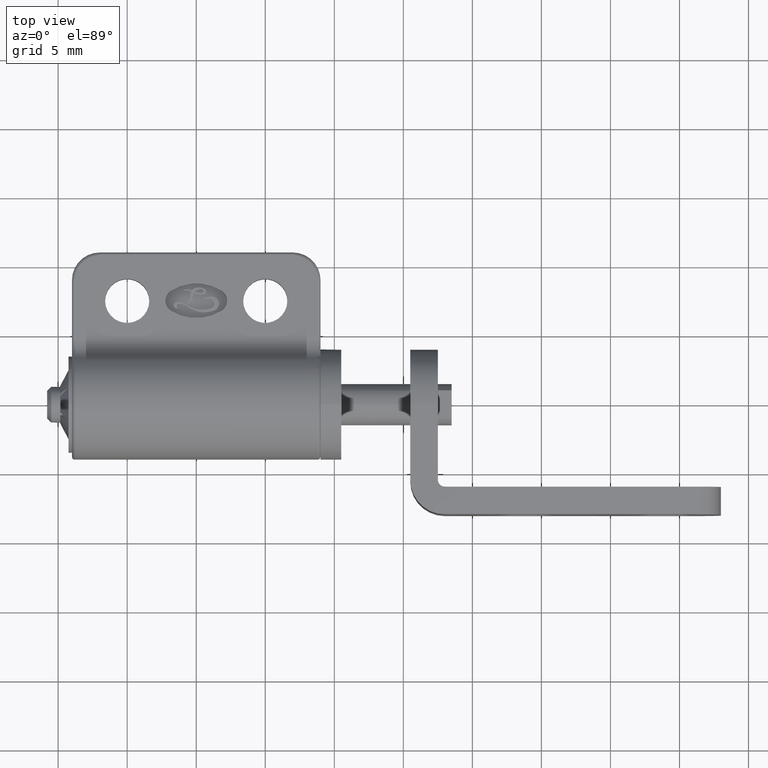
[diagram: clean part render]
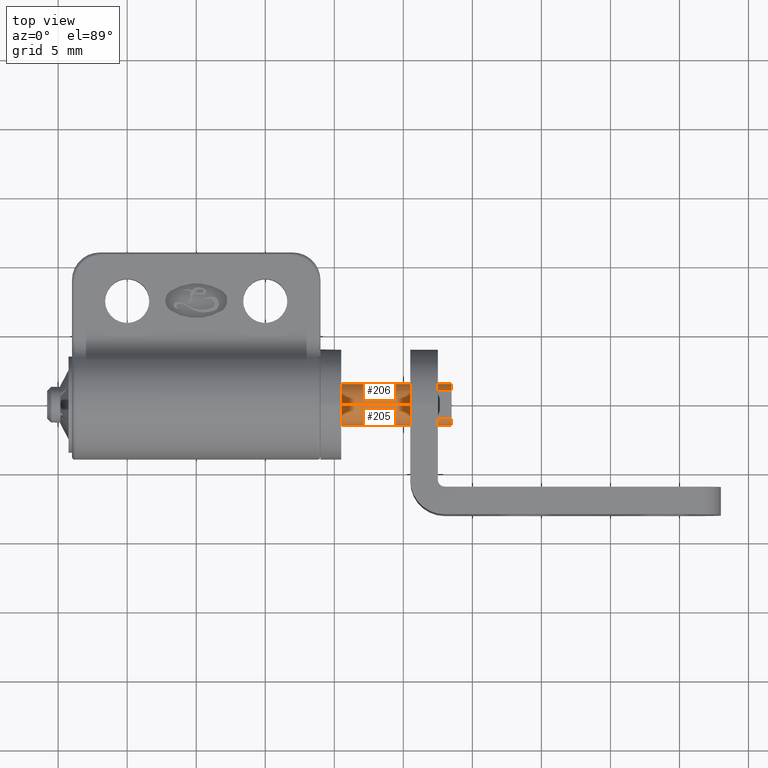
[diagram: same view with one multi-face feature highlighted, each face labeled with its STEP entity id]
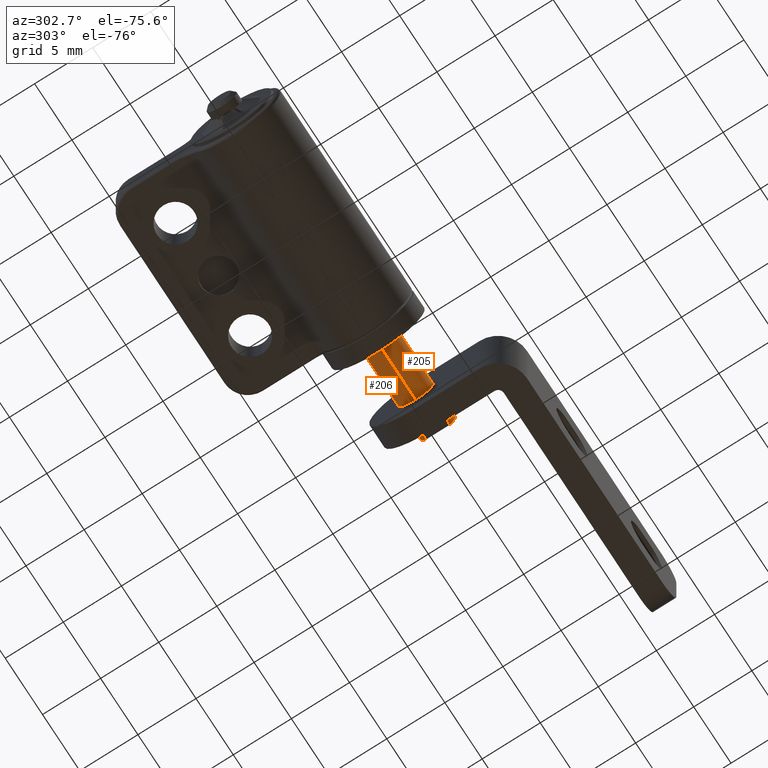
[diagram: same view with one multi-face feature highlighted, each face labeled with its STEP entity id]
A machine part, top view. The highlighted faces form ONE feature: a constant-radius fillet chain: 2 tangent blend faces with common blend radius 1.5 mm. The faces share edges in the B-rep.
A second angle (auxiliary view) of the same feature is appended — it is thin or edge-on in the first view.
Their STEP definitions:
[1] entity #205 (Cylinder):
#205=ADVANCED_FACE('',(#1887),#1886,.T.);
#1886=CYLINDRICAL_SURFACE('',#3113,1.50000000000E+00);
#1887=FACE_OUTER_BOUND('',#3114,.T.);
#3110=CARTESIAN_POINT('',(1.45000000000E+01,0.00000000000E+00,0.00000000000E+00));
#3111=DIRECTION('',(1.00000000000E+00,-0.00000000000E+00,-0.00000000000E+00));
#3112=DIRECTION('',(-0.00000000000E+00,-0.00000000000E+00,1.00000000000E+00));
#3113=AXIS2_PLACEMENT_3D('',#3110,#3111,#3112);
#3114=EDGE_LOOP('',(#4062,#4063,#4064,#4065,#4066,#4067,#4068,#4069,#4070,#4071));
#4062=ORIENTED_EDGE('',*,*,#4532,.T.);
#4063=ORIENTED_EDGE('',*,*,#4283,.T.);
#4064=ORIENTED_EDGE('',*,*,#4279,.T.);
#4065=ORIENTED_EDGE('',*,*,#4291,.T.);
#4066=ORIENTED_EDGE('',*,*,#4287,.T.);
#4067=ORIENTED_EDGE('',*,*,#4288,.T.);
#4068=ORIENTED_EDGE('',*,*,#4531,.T.);
#4069=ORIENTED_EDGE('',*,*,#4571,.F.);
#4070=ORIENTED_EDGE('',*,*,#4514,.F.);
#4071=ORIENTED_EDGE('',*,*,#4572,.T.);
#4279=EDGE_CURVE('',#5805,#5797,#5806,.T.);
#4283=EDGE_CURVE('',#5007,#5805,#5831,.T.);
#4287=EDGE_CURVE('',#5838,#5852,#5859,.T.);
#4288=EDGE_CURVE('',#5852,#4626,#5865,.T.);
#4291=EDGE_CURVE('',#5797,#5838,#5883,.T.);
#4514=EDGE_CURVE('',#7359,#7360,#7361,.T.);
#4531=EDGE_CURVE('',#4626,#7465,#7472,.T.);
#4532=EDGE_CURVE('',#7478,#5007,#7479,.T.);
#4571=EDGE_CURVE('',#7360,#7465,#7722,.T.);
#4572=EDGE_CURVE('',#7359,#7478,#7728,.T.);
#4626=VERTEX_POINT('',#7788);
#5007=VERTEX_POINT('',#8016);
#5797=VERTEX_POINT('',#8498);
#5805=VERTEX_POINT('',#8503);
#5806=LINE('',#8504,#8505);
#5831=CIRCLE('',#8521,1.50000000000E+00);
#5838=VERTEX_POINT('',#8523);
#5852=VERTEX_POINT('',#8531);
#5859=LINE('',#8535,#8536);
#5865=CIRCLE('',#8541,1.50000000000E+00);
#5883=CIRCLE('',#8553,1.50000000000E+00);
#7359=VERTEX_POINT('',#9508);
#7360=VERTEX_POINT('',#9509);
#7361=CIRCLE('',#9513,1.50000000000E+00);
#7465=VERTEX_POINT('',#9582);
#7472=CIRCLE('',#9590,1.50000000000E+00);
#7478=VERTEX_POINT('',#9591);
#7479=CIRCLE('',#9595,1.50000000000E+00);
#7722=(BOUNDED_CURVE() B_SPLINE_CURVE(1,(#9725,#9726),.UNSPECIFIED.,.F.,.F.) B_SPLINE_CURVE_WITH_KNOTS((2,2),(8.33333366442E-02,6.04166666544E-01),.UNSPECIFIED.) CURVE() GEOMETRIC_REPRESENTATION_ITEM() RATIONAL_B_SPLINE_CURVE((1.00000000000E+00,1.00000000000E+00)) REPRESENTATION_ITEM('') );
#7728=(BOUNDED_CURVE() B_SPLINE_CURVE(1,(#9727,#9728),.UNSPECIFIED.,.F.,.F.) B_SPLINE_CURVE_WITH_KNOTS((2,2),(8.33333333333E-02,6.04166666667E-01),.UNSPECIFIED.) CURVE() GEOMETRIC_REPRESENTATION_ITEM() RATIONAL_B_SPLINE_CURVE((7.50000000000E-01,7.50000000000E-01)) REPRESENTATION_ITEM('') );
#7788=CARTESIAN_POINT('',(1.55000000000E+01,-9.92156741649E-01,1.12500000000E+00));
#8016=CARTESIAN_POINT('',(1.55000000000E+01,-9.92156741649E-01,-1.12500000000E+00));
#8498=CARTESIAN_POINT('',(1.85000000000E+01,-1.01980390272E+00,-1.10000000000E+00));
#8503=CARTESIAN_POINT('',(1.55000000000E+01,-1.01980390272E+00,-1.10000000000E+00));
#8504=CARTESIAN_POINT('',(1.55000000000E+01,-1.01980390272E+00,-1.10000000000E+00));
#8505=VECTOR('',#8506,3.00000000000E+00);
#8506=DIRECTION('',(1.00000000000E+00,0.00000000000E+00,0.00000000000E+00));
#8518=CARTESIAN_POINT('',(1.55000000000E+01,0.00000000000E+00,0.00000000000E+00));
#8519=DIRECTION('',(-1.00000000000E+00,1.13455352822E-17,-1.00058216159E-17));
#8520=DIRECTION('',(-0.00000000000E+00,6.61437827766E-01,7.50000000000E-01));
#8521=AXIS2_PLACEMENT_3D('',#8518,#8519,#8520);
#8523=CARTESIAN_POINT('',(1.85000000000E+01,-1.01980390272E+00,1.10000000000E+00));
#8531=CARTESIAN_POINT('',(1.55000000000E+01,-1.01980390272E+00,1.10000000000E+00));
#8535=CARTESIAN_POINT('',(1.85000000000E+01,-1.01980390272E+00,1.10000000000E+00));
#8536=VECTOR('',#8537,3.00000000000E+00);
#8537=DIRECTION('',(-1.00000000000E+00,0.00000000000E+00,0.00000000000E+00));
#8538=CARTESIAN_POINT('',(1.55000000000E+01,0.00000000000E+00,0.00000000000E+00));
#8539=DIRECTION('',(-1.00000000000E+00,0.00000000000E+00,0.00000000000E+00));
#8540=DIRECTION('',(-0.00000000000E+00,6.79869268479E-01,-7.33333333333E-01));
#8541=AXIS2_PLACEMENT_3D('',#8538,#8539,#8540);
#8550=CARTESIAN_POINT('',(1.85000000000E+01,0.00000000000E+00,0.00000000000E+00));
#8551=DIRECTION('',(-1.00000000000E+00,-0.00000000000E+00,0.00000000000E+00));
#8552=DIRECTION('',(-0.00000000000E+00,6.79869268479E-01,7.33333333333E-01));
#8553=AXIS2_PLACEMENT_3D('',#8550,#8551,#8552);
#9508=CARTESIAN_POINT('',(1.05000000000E+01,-6.06679874640E-21,-1.50000000000E+00));
#9509=CARTESIAN_POINT('',(1.05000000000E+01,2.96059473233E-16,1.50000000000E+00));
#9510=CARTESIAN_POINT('',(1.05000000000E+01,0.00000000000E+00,0.00000000000E+00));
#9511=DIRECTION('',(-1.00000000000E+00,0.00000000000E+00,0.00000000000E+00));
#9512=DIRECTION('',(-0.00000000000E+00,-1.22464679915E-16,-1.00000000000E+00));
#9513=AXIS2_PLACEMENT_3D('',#9510,#9511,#9512);
#9582=CARTESIAN_POINT('',(1.55000000000E+01,-4.12368552004E-16,1.50000000000E+00));
#9587=CARTESIAN_POINT('',(1.55000000000E+01,0.00000000000E+00,0.00000000000E+00));
#9588=DIRECTION('',(-1.00000000000E+00,0.00000000000E+00,0.00000000000E+00));
#9589=DIRECTION('',(-0.00000000000E+00,6.61437827766E-01,-7.50000000000E-01));
#9590=AXIS2_PLACEMENT_3D('',#9587,#9588,#9589);
#9591=CARTESIAN_POINT('',(1.55000000000E+01,-1.05208873042E-08,-1.50000000000E+00));
#9592=CARTESIAN_POINT('',(1.55000000000E+01,0.00000000000E+00,0.00000000000E+00));
#9593=DIRECTION('',(-1.00000000000E+00,1.13455352822E-17,1.00058216159E-17));
#9594=DIRECTION('',(-0.00000000000E+00,-6.61437827766E-01,7.50000000000E-01));
#9595=AXIS2_PLACEMENT_3D('',#9592,#9593,#9594);
#9725=CARTESIAN_POINT('',(1.05000000318E+01,0.00000000000E+00,1.50000000000E+00));
#9726=CARTESIAN_POINT('',(1.54999999988E+01,0.00000000000E+00,1.50000000000E+00));
#9727=CARTESIAN_POINT('',(1.05000000000E+01,7.40148683083E-17,-1.50000000000E+00));
#9728=CARTESIAN_POINT('',(1.55000000000E+01,7.40148683083E-17,-1.50000000000E+00));
[2] entity #206 (Cylinder):
#206=ADVANCED_FACE('',(#1897),#1896,.T.);
#1896=CYLINDRICAL_SURFACE('',#3118,1.50000000000E+00);
#1897=FACE_OUTER_BOUND('',#3119,.T.);
#3115=CARTESIAN_POINT('',(1.45000000000E+01,0.00000000000E+00,0.00000000000E+00));
#3116=DIRECTION('',(1.00000000000E+00,-0.00000000000E+00,-0.00000000000E+00));
#3117=DIRECTION('',(-0.00000000000E+00,-0.00000000000E+00,1.00000000000E+00));
#3118=AXIS2_PLACEMENT_3D('',#3115,#3116,#3117);
#3119=EDGE_LOOP('',(#4072,#4073,#4074,#4075,#4076,#4077,#4078,#4079,#4080,#4081));
#4072=ORIENTED_EDGE('',*,*,#4515,.F.);
#4073=ORIENTED_EDGE('',*,*,#4571,.T.);
#4074=ORIENTED_EDGE('',*,*,#4530,.T.);
#4075=ORIENTED_EDGE('',*,*,#4289,.T.);
#4076=ORIENTED_EDGE('',*,*,#4285,.T.);
#4077=ORIENTED_EDGE('',*,*,#4290,.T.);
#4078=ORIENTED_EDGE('',*,*,#4281,.T.);
#4079=ORIENTED_EDGE('',*,*,#4282,.T.);
#4080=ORIENTED_EDGE('',*,*,#4533,.T.);
#4081=ORIENTED_EDGE('',*,*,#4572,.F.);
#4281=EDGE_CURVE('',#5798,#5812,#5819,.T.);
#4282=EDGE_CURVE('',#5812,#5020,#5825,.T.);
#4285=EDGE_CURVE('',#5845,#5837,#5846,.T.);
#4289=EDGE_CURVE('',#4605,#5845,#5871,.T.);
#4290=EDGE_CURVE('',#5837,#5798,#5877,.T.);
#4515=EDGE_CURVE('',#7360,#7359,#7367,.T.);
#4530=EDGE_CURVE('',#7465,#4605,#7466,.T.);
#4533=EDGE_CURVE('',#5020,#7478,#7485,.T.);
#4571=EDGE_CURVE('',#7360,#7465,#7722,.T.);
#4572=EDGE_CURVE('',#7359,#7478,#7728,.T.);
#4605=VERTEX_POINT('',#7776);
#5020=VERTEX_POINT('',#8023);
#5798=VERTEX_POINT('',#8499);
#5812=VERTEX_POINT('',#8507);
#5819=LINE('',#8511,#8512);
#5825=CIRCLE('',#8517,1.50000000000E+00);
#5837=VERTEX_POINT('',#8522);
#5845=VERTEX_POINT('',#8527);
#5846=LINE('',#8528,#8529);
#5871=CIRCLE('',#8545,1.50000000000E+00);
#5877=CIRCLE('',#8549,1.50000000000E+00);
#7359=VERTEX_POINT('',#9508);
#7360=VERTEX_POINT('',#9509);
#7367=CIRCLE('',#9517,1.50000000000E+00);
#7465=VERTEX_POINT('',#9582);
#7466=CIRCLE('',#9586,1.50000000000E+00);
#7478=VERTEX_POINT('',#9591);
#7485=CIRCLE('',#9599,1.50000000000E+00);
#7722=(BOUNDED_CURVE() B_SPLINE_CURVE(1,(#9725,#9726),.UNSPECIFIED.,.F.,.F.) B_SPLINE_CURVE_WITH_KNOTS((2,2),(8.33333366442E-02,6.04166666544E-01),.UNSPECIFIED.) CURVE() GEOMETRIC_REPRESENTATION_ITEM() RATIONAL_B_SPLINE_CURVE((1.00000000000E+00,1.00000000000E+00)) REPRESENTATION_ITEM('') );
#7728=(BOUNDED_CURVE() B_SPLINE_CURVE(1,(#9727,#9728),.UNSPECIFIED.,.F.,.F.) B_SPLINE_CURVE_WITH_KNOTS((2,2),(8.33333333333E-02,6.04166666667E-01),.UNSPECIFIED.) CURVE() GEOMETRIC_REPRESENTATION_ITEM() RATIONAL_B_SPLINE_CURVE((7.50000000000E-01,7.50000000000E-01)) REPRESENTATION_ITEM('') );
#7776=CARTESIAN_POINT('',(1.55000000000E+01,9.92156741649E-01,1.12500000000E+00));
#8023=CARTESIAN_POINT('',(1.55000000000E+01,9.92156741649E-01,-1.12500000000E+00));
#8499=CARTESIAN_POINT('',(1.85000000000E+01,1.01980390272E+00,-1.10000000000E+00));
#8507=CARTESIAN_POINT('',(1.55000000000E+01,1.01980390272E+00,-1.10000000000E+00));
#8511=CARTESIAN_POINT('',(1.85000000000E+01,1.01980390272E+00,-1.10000000000E+00));
#8512=VECTOR('',#8513,3.00000000000E+00);
#8513=DIRECTION('',(-1.00000000000E+00,0.00000000000E+00,0.00000000000E+00));
#8514=CARTESIAN_POINT('',(1.55000000000E+01,0.00000000000E+00,0.00000000000E+00));
#8515=DIRECTION('',(-1.00000000000E+00,1.08468920031E-17,1.00560934520E-17));
#8516=DIRECTION('',(-1.54074395551E-33,-6.79869268479E-01,7.33333333333E-01));
#8517=AXIS2_PLACEMENT_3D('',#8514,#8515,#8516);
#8522=CARTESIAN_POINT('',(1.85000000000E+01,1.01980390272E+00,1.10000000000E+00));
#8527=CARTESIAN_POINT('',(1.55000000000E+01,1.01980390272E+00,1.10000000000E+00));
#8528=CARTESIAN_POINT('',(1.55000000000E+01,1.01980390272E+00,1.10000000000E+00));
#8529=VECTOR('',#8530,3.00000000000E+00);
#8530=DIRECTION('',(1.00000000000E+00,0.00000000000E+00,0.00000000000E+00));
#8542=CARTESIAN_POINT('',(1.55000000000E+01,0.00000000000E+00,0.00000000000E+00));
#8543=DIRECTION('',(-1.00000000000E+00,0.00000000000E+00,0.00000000000E+00));
#8544=DIRECTION('',(-0.00000000000E+00,-6.61437827766E-01,-7.50000000000E-01));
#8545=AXIS2_PLACEMENT_3D('',#8542,#8543,#8544);
#8546=CARTESIAN_POINT('',(1.85000000000E+01,0.00000000000E+00,0.00000000000E+00));
#8547=DIRECTION('',(-1.00000000000E+00,0.00000000000E+00,0.00000000000E+00));
#8548=DIRECTION('',(-0.00000000000E+00,-6.79869268479E-01,-7.33333333333E-01));
#8549=AXIS2_PLACEMENT_3D('',#8546,#8547,#8548);
#9508=CARTESIAN_POINT('',(1.05000000000E+01,-6.06679874640E-21,-1.50000000000E+00));
#9509=CARTESIAN_POINT('',(1.05000000000E+01,2.96059473233E-16,1.50000000000E+00));
#9514=CARTESIAN_POINT('',(1.05000000000E+01,0.00000000000E+00,0.00000000000E+00));
#9515=DIRECTION('',(-1.00000000000E+00,0.00000000000E+00,0.00000000000E+00));
#9516=DIRECTION('',(-0.00000000000E+00,-1.22464679915E-16,-1.00000000000E+00));
#9517=AXIS2_PLACEMENT_3D('',#9514,#9515,#9516);
#9582=CARTESIAN_POINT('',(1.55000000000E+01,-4.12368552004E-16,1.50000000000E+00));
#9583=CARTESIAN_POINT('',(1.55000000000E+01,0.00000000000E+00,0.00000000000E+00));
#9584=DIRECTION('',(-1.00000000000E+00,0.00000000000E+00,0.00000000000E+00));
#9585=DIRECTION('',(-0.00000000000E+00,6.61437827766E-01,-7.50000000000E-01));
#9586=AXIS2_PLACEMENT_3D('',#9583,#9584,#9585);
#9591=CARTESIAN_POINT('',(1.55000000000E+01,-1.05208873042E-08,-1.50000000000E+00));
#9596=CARTESIAN_POINT('',(1.55000000000E+01,0.00000000000E+00,0.00000000000E+00));
#9597=DIRECTION('',(-1.00000000000E+00,1.13455352822E-17,1.00058216159E-17));
#9598=DIRECTION('',(-0.00000000000E+00,-6.61437827766E-01,7.50000000000E-01));
#9599=AXIS2_PLACEMENT_3D('',#9596,#9597,#9598);
#9725=CARTESIAN_POINT('',(1.05000000318E+01,0.00000000000E+00,1.50000000000E+00));
#9726=CARTESIAN_POINT('',(1.54999999988E+01,0.00000000000E+00,1.50000000000E+00));
#9727=CARTESIAN_POINT('',(1.05000000000E+01,7.40148683083E-17,-1.50000000000E+00));
#9728=CARTESIAN_POINT('',(1.55000000000E+01,7.40148683083E-17,-1.50000000000E+00));